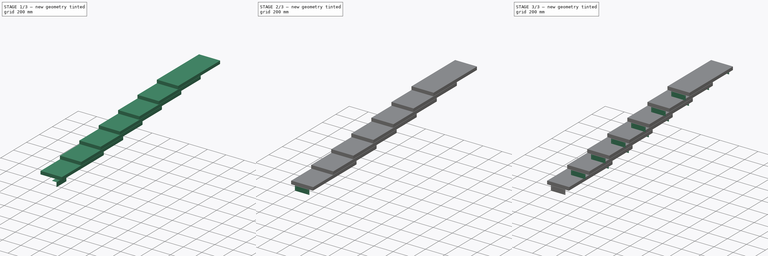
[diagram: build sequence overview — one tinted view per stage of 3, left to right]
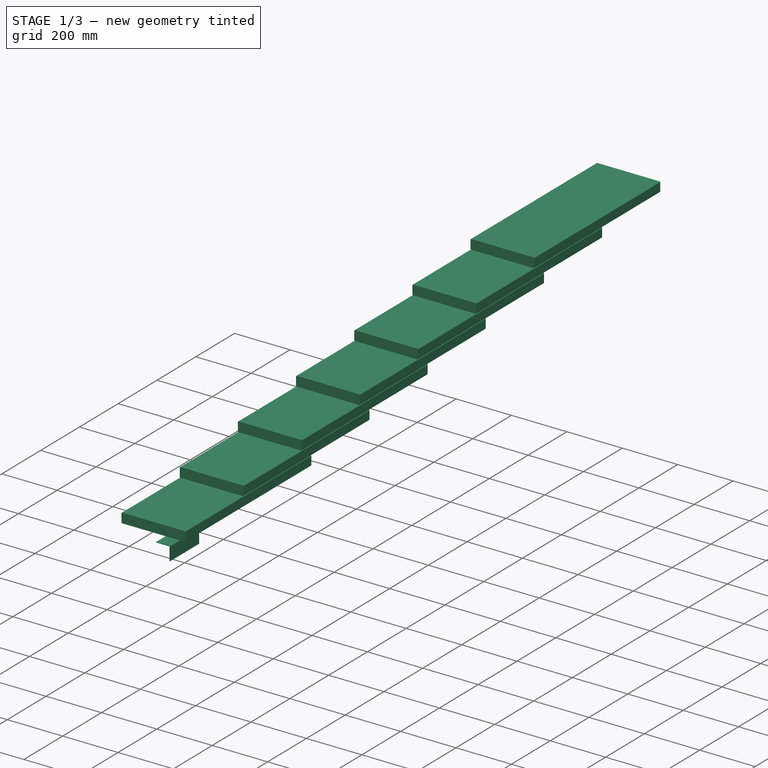
[diagram: stage 1 of 3 — iso view after this stage's code; geometry added in this stage tinted green]
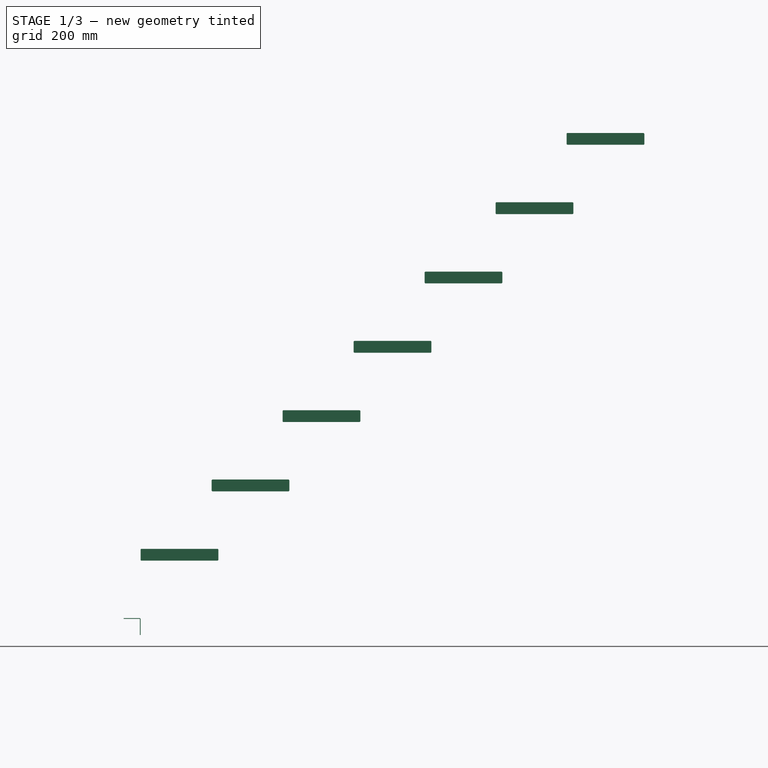
[diagram: stage 1 of 3 — front view after this stage's code; geometry added in this stage tinted green]
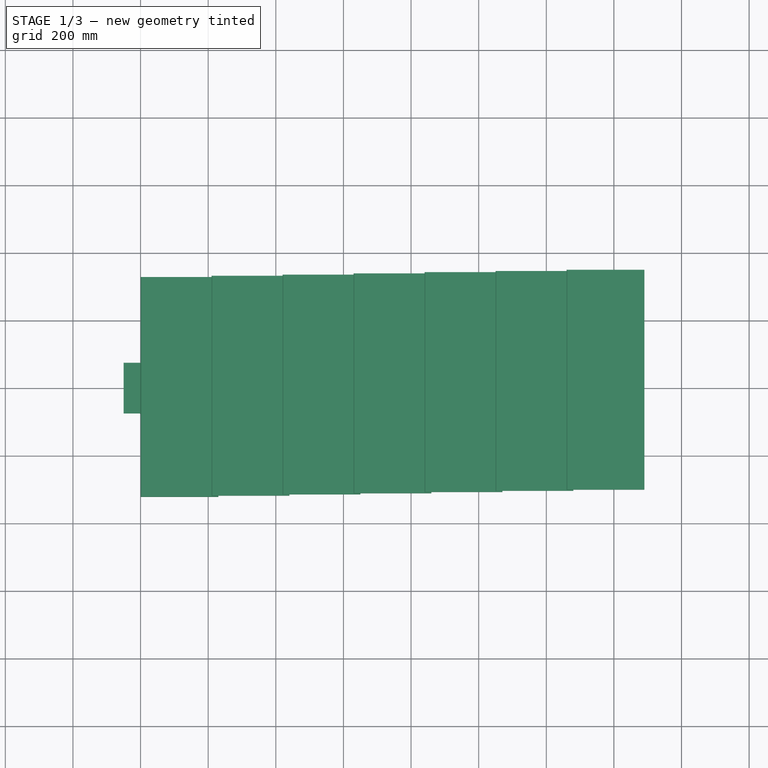
[diagram: stage 1 of 3 — top view after this stage's code; geometry added in this stage tinted green]
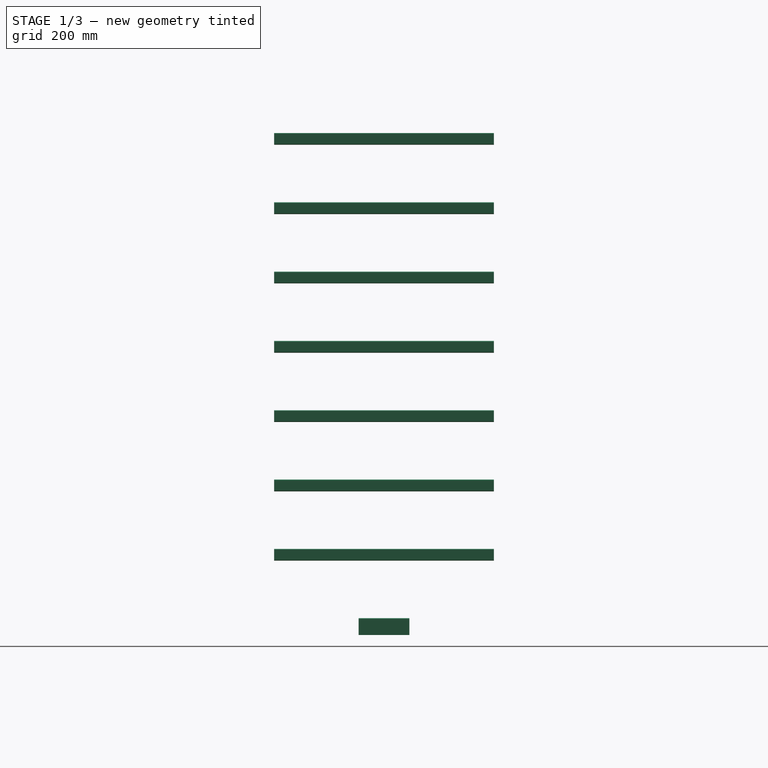
[diagram: stage 1 of 3 — right view after this stage's code; geometry added in this stage tinted green]
FCSTD DOCUMENT  (FreeCAD 0.17R10980 (Git))
Label: plate
License: All rights reserved
LicenseURL: http://en.wikipedia.org/wiki/All_rights_reserved
objects: Sketcher::SketchObject×3, Part::FeaturePython×3, PartDesign::Pocket×2, PartDesign::Pad×1, PartDesign::Body×1, Part::Compound×1
note: 14 computed .brp shape members not serialized (recipe doc carries the construction recipe); baked Part::Feature solids carry a one-line shape summary decoded from their .brp

FEATURE [Sketcher::SketchObject] Sketch  label="plate_sketch"
  MapMode = 5
  Placement = pos=(0,0,0) rot=(1,0,0;1.5708rad)
  Support = -> [XZ_Plane]
  expr: Constraints.Constraint14 = Constraints.length
  expr: Constraints.Constraint15 = Constraints.width
  sketch-geometry (8):
    g0: LineSegment StartX=-3 StartY=0 StartZ=0 EndX=-50 EndY=0 EndZ=0
    g1: LineSegment StartX=-50 StartY=0 StartZ=0 EndX=-50 EndY=-2 EndZ=0
    g2: LineSegment StartX=-50 StartY=-2 StartZ=0 EndX=-3 EndY=-2 EndZ=0
    g3: LineSegment StartX=-2 StartY=-3 StartZ=0 EndX=-2 EndY=-50 EndZ=0
    g4: LineSegment StartX=-2 StartY=-50 StartZ=0 EndX=0 EndY=-50 EndZ=0
    g5: LineSegment StartX=0 StartY=-50 StartZ=0 EndX=0 EndY=-3 EndZ=0
    g6: ArcOfCircle CenterX=-3 CenterY=-3 CenterZ=0 NormalX=0 NormalY=0 NormalZ=1 Radius=1 StartAngle=0 EndAngle=1.5708
    g7: ArcOfCircle CenterX=-3 CenterY=-3 CenterZ=0 NormalX=0 NormalY=0 NormalZ=1 Radius=3 StartAngle=1e-12 EndAngle=1.5708
  constraints (22):
    c: Horizontal(g0)
    c: Coincident(g0,g1)
    c: Vertical(g1)
    c: Coincident(g1,g2)
    c: Horizontal(g2)
    c: Vertical(g3)
    c: Coincident(g3,g4)
    c: Horizontal(g4)
    c: Coincident(g4,g5)
    c: Vertical(g5)
    c: DistanceX(g0,g-1) = 50  'length'
    c: DistanceY(g1,g1) = 2  'width'
    c: DistanceX(g4,g4) = 2  'Constraint15'
    c: DistanceY(g5,g-1) = 50  'Constraint14'
    c: Tangent(g3,g6) = 1.5708
    c: Tangent(g2,g6) = 1.5708
    c: Tangent(g5,g7) = -1.5708
    c: Tangent(g0,g7) = -1.5708
    c: Radius(g6) = 1
    c: PointOnObject(g0,g-1)
    c: PointOnObject(g4,g-2)
    c: Radius(g7) = 3
FEATURE [PartDesign::Pad] Pad  label="Plate_pad"
  Length = 150
  Length2 = 100
  Midplane = true
  Placement = pos=(0,0,0) rot=(1,0,0;1.5708rad)
  Profile = -> Sketch
  Type = 0
FEATURE [Part::FeaturePython] step_01  # a2plus imported part (geometry in sourceFile) (typed FeaturePython)
  fixedPosition = true
  sourceFile = step.fcstd
  timeLastImport = 1.4938e+09
  updateColors = true
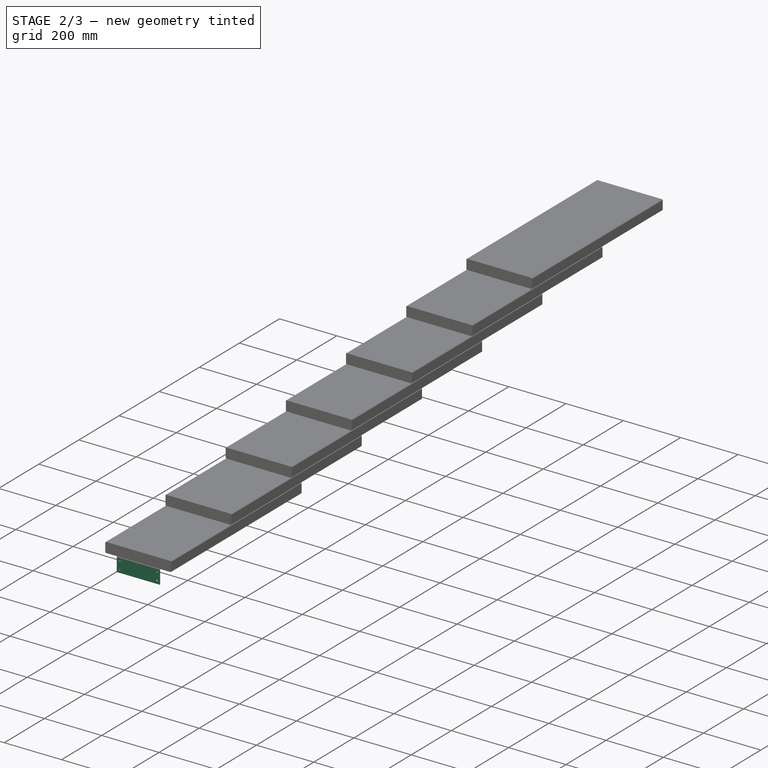
[diagram: stage 2 of 3 — iso view after this stage's code; geometry added in this stage tinted green]
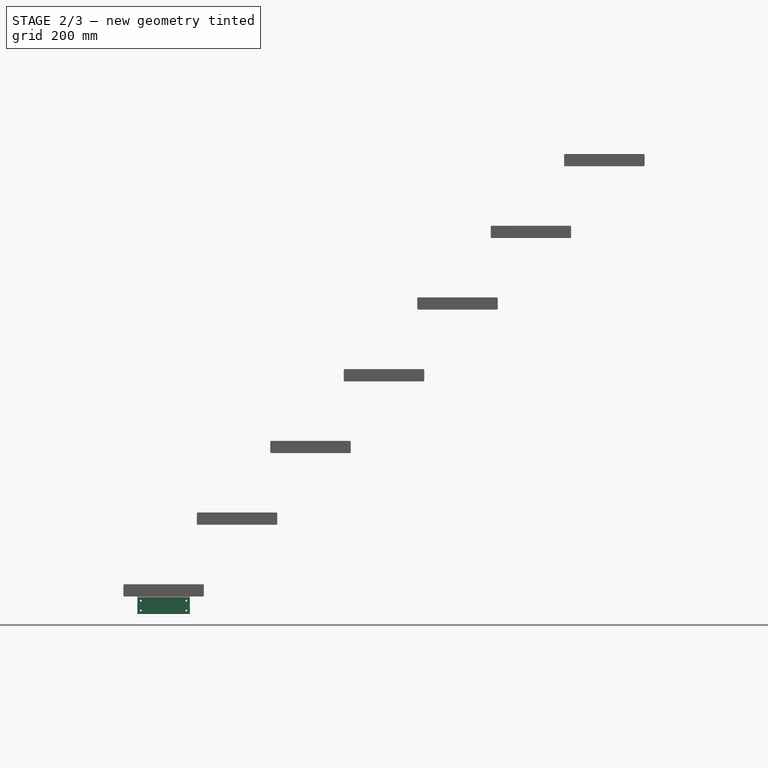
[diagram: stage 2 of 3 — front view after this stage's code; geometry added in this stage tinted green]
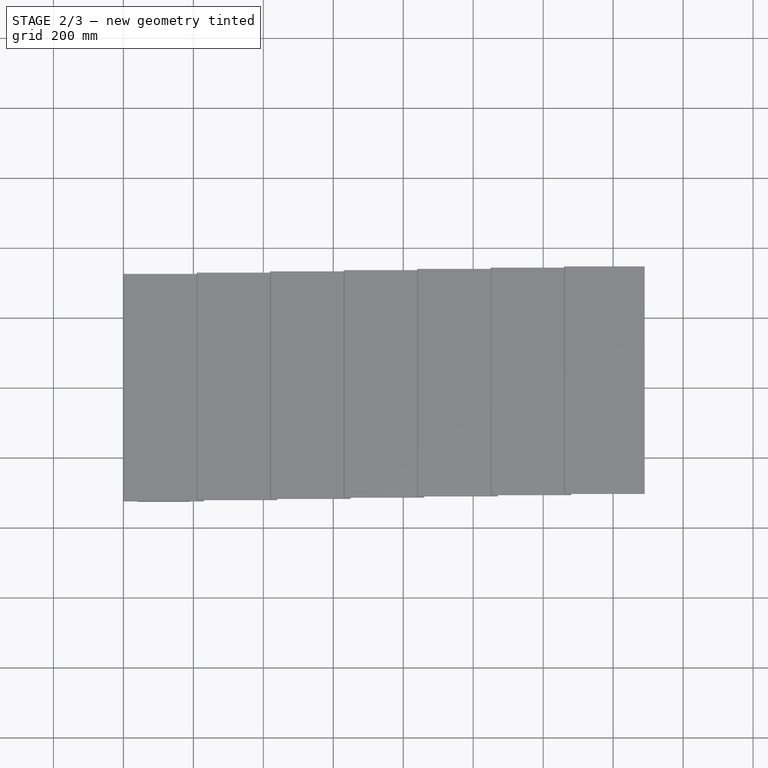
[diagram: stage 2 of 3 — top view after this stage's code; geometry added in this stage tinted green]
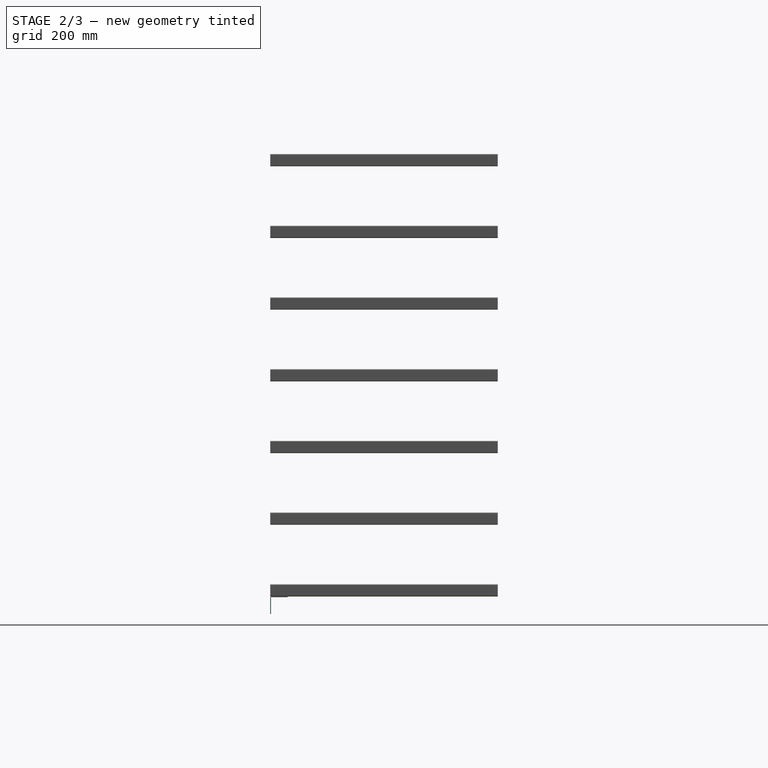
[diagram: stage 2 of 3 — right view after this stage's code; geometry added in this stage tinted green]
FEATURE [Sketcher::SketchObject] Sketch001
  ExternalGeometry = -> [Pad]
  MapMode = 5
  Placement = pos=(-2,0,0) rot=(0.707107,0,-0.707107;3.14159rad)
  Support = -> [Pad]
  sketch-geometry (10):
    g0: Circle CenterX=40 CenterY=65 CenterZ=0 NormalX=0 NormalY=0 NormalZ=1 Radius=2.5
    g1: Circle CenterX=12 CenterY=65 CenterZ=0 NormalX=0 NormalY=0 NormalZ=1 Radius=2.5
    g2: Circle CenterX=12 CenterY=-65 CenterZ=0 NormalX=0 NormalY=0 NormalZ=1 Radius=2.5
    g3: Circle CenterX=40 CenterY=-65 CenterZ=0 NormalX=0 NormalY=0 NormalZ=1 Radius=2.5
    g4: LineSegment [constr] StartX=40 StartY=65 StartZ=0 EndX=12 EndY=65 EndZ=0
    g5: LineSegment [constr] StartX=12 StartY=65 StartZ=0 EndX=12 EndY=-65 EndZ=0
    g6: LineSegment [constr] StartX=12 StartY=-65 StartZ=0 EndX=40 EndY=-65 EndZ=0
    g7: LineSegment [constr] StartX=40 StartY=-65 StartZ=0 EndX=40 EndY=65 EndZ=0
    g8: LineSegment [constr] StartX=2 StartY=0 StartZ=0 EndX=26 EndY=0 EndZ=0
    g9: LineSegment [constr] StartX=26 StartY=0 StartZ=0 EndX=50 EndY=0 EndZ=0
  constraints (26):
    c: DistanceX(g0,g-4) = 10
    c: DistanceY(g0,g-4) = 10
    c: Radius(g0) = 2.5
    c: Coincident(g4,g5)
    c: Coincident(g5,g6)
    c: Coincident(g6,g7)
    c: Coincident(g7,g4)
    c: Horizontal(g4)
    c: Horizontal(g6)
    c: Vertical(g5)
    c: Vertical(g7)
    c: Coincident(g4,g0)
    c: Coincident(g5,g2)
    c: Coincident(g4,g1)
    c: Coincident(g3,g6)
    c: Equal(g3,g2)
    c: Equal(g2,g1)
    c: Equal(g1,g0)
    c: PointOnObject(g8,g-5)
    c: PointOnObject(g8,g-1)
    c: Horizontal(g8)
    c: Coincident(g9,g8)
    c: PointOnObject(g9,g-4)
    c: Horizontal(g9)
    c: Equal(g9,g8)
    c: Symmetric(g2,g0,g8)
FEATURE [PartDesign::Pocket] Pocket
  BaseFeature = -> Pad
  Length = 5
  Placement = pos=(0,0,0) rot=(1,0,0;1.5708rad)
  Profile = -> Sketch001
  Type = 1
FEATURE [Sketcher::SketchObject] Sketch002
  ExternalGeometry = -> [Pocket]
  MapMode = 5
  Placement = pos=(0,0,-2) rot=(1,0,0;3.14159rad)
  Support = -> [Pocket]
  sketch-geometry (10):
    g0: LineSegment [constr] StartX=-40 StartY=65 StartZ=0 EndX=-12 EndY=65 EndZ=0
    g1: LineSegment [constr] StartX=-12 StartY=65 StartZ=0 EndX=-12 EndY=-65 EndZ=0
    g2: LineSegment [constr] StartX=-12 StartY=-65 StartZ=0 EndX=-40 EndY=-65 EndZ=0
    g3: LineSegment [constr] StartX=-40 StartY=-65 StartZ=0 EndX=-40 EndY=65 EndZ=0
    g4: LineSegment [constr] StartX=-50 StartY=0 StartZ=0 EndX=-26 EndY=0 EndZ=0
    g5: LineSegment [constr] StartX=-26 StartY=0 StartZ=0 EndX=-2 EndY=0 EndZ=0
    g6: Circle CenterX=-12 CenterY=65 CenterZ=0 NormalX=0 NormalY=0 NormalZ=1 Radius=2.5
    g7: Circle CenterX=-40 CenterY=65 CenterZ=0 NormalX=0 NormalY=0 NormalZ=1 Radius=2.5
    g8: Circle CenterX=-40 CenterY=-65 CenterZ=0 NormalX=0 NormalY=0 NormalZ=1 Radius=2.5
    g9: Circle CenterX=-12 CenterY=-65 CenterZ=0 NormalX=0 NormalY=0 NormalZ=1 Radius=2.5
  constraints (26):
    c: Coincident(g0,g1)
    c: Coincident(g1,g2)
    c: Coincident(g2,g3)
    c: Coincident(g3,g0)
    c: Horizontal(g0)
    c: Horizontal(g2)
    c: Vertical(g1)
    c: Vertical(g3)
    c: DistanceX(g0,g-4) = -10
    c: DistanceY(g0,g-4) = 10
    c: PointOnObject(g4,g-3)
    c: PointOnObject(g4,g-1)
    c: Horizontal(g4)
    c: Coincident(g5,g4)
    c: PointOnObject(g5,g-5)
    c: Horizontal(g5)
    c: Equal(g5,g4)
    c: Symmetric(g0,g1,g4)
    c: Coincident(g6,g0)
    c: Coincident(g7,g0)
    c: Coincident(g9,g1)
    c: Coincident(g2,g8)
    c: Radius(g8) = 2.5
    c: Equal(g8,g9)
    c: Equal(g9,g6)
    c: Equal(g6,g7)
FEATURE [PartDesign::Pocket] Pocket001
  BaseFeature = -> Pocket
  Length = 5
  Placement = pos=(0,0,0) rot=(1,0,0;1.5708rad)
  Profile = -> Sketch002
  Type = 1
FEATURE [PartDesign::Body] Body  label="Plate"
  Group = -> [Sketch,Pad,Sketch001,Pocket,Sketch002,Pocket001]
  Origin = -> BodyOrigin
  Placement = pos=(115,325,170) rot=(0,0,1;1.5708rad)
  Tip = -> Pocket001
FEATURE [Part::FeaturePython] Component  label="Compound001"  # WARN: FeaturePython — macro-defined, semantics opaque (R4)
  CloneOf = -> Body
  HorizontalArea = 0
  MoveWithHost = false
  PerimeterLength = 0
  Placement = pos=(115,-325,170) rot=(0,0,-1;1.5708rad)
  Role = 0
  VerticalArea = 0
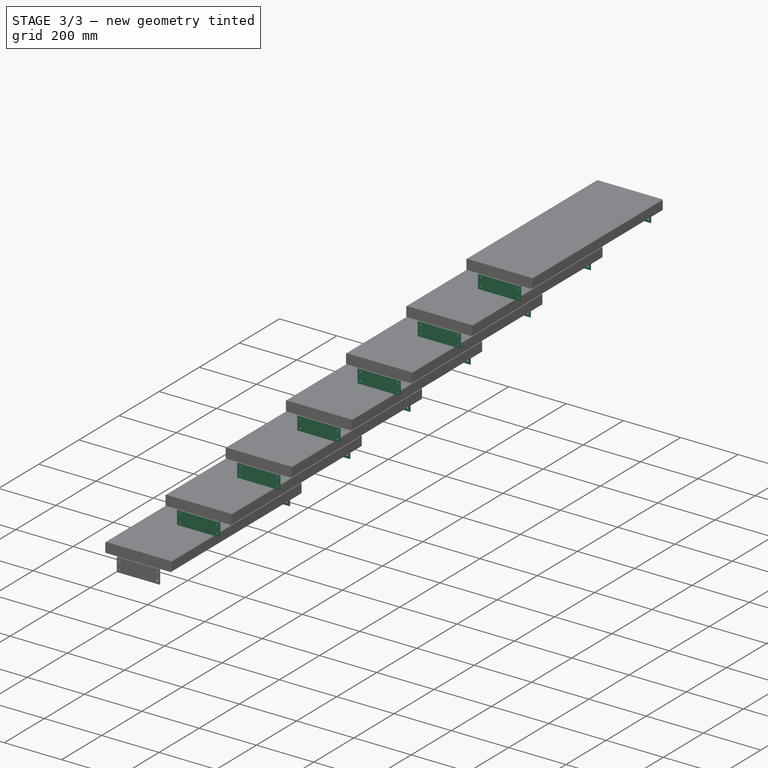
[diagram: stage 3 of 3 — iso view after this stage's code; geometry added in this stage tinted green]
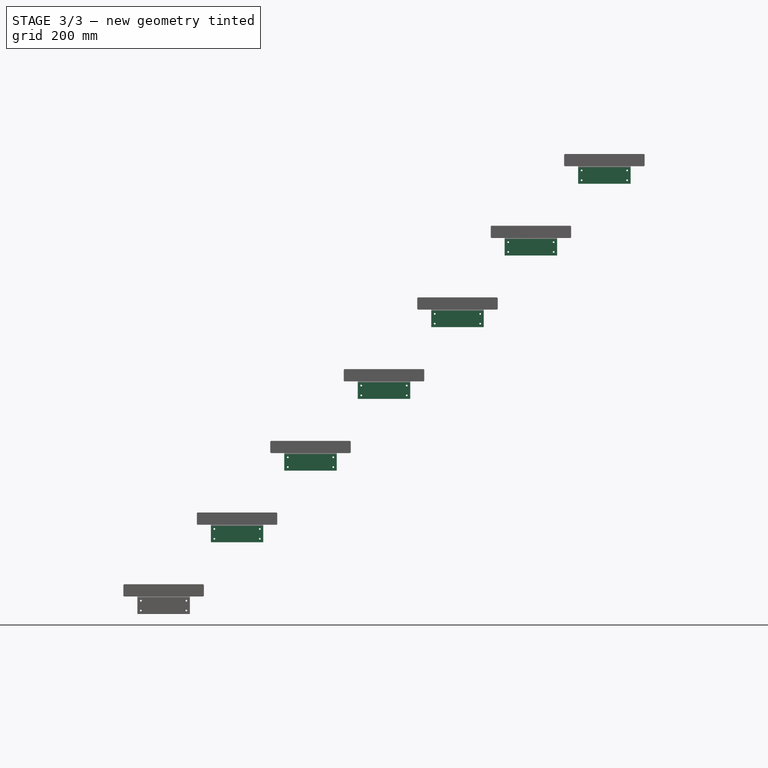
[diagram: stage 3 of 3 — front view after this stage's code; geometry added in this stage tinted green]
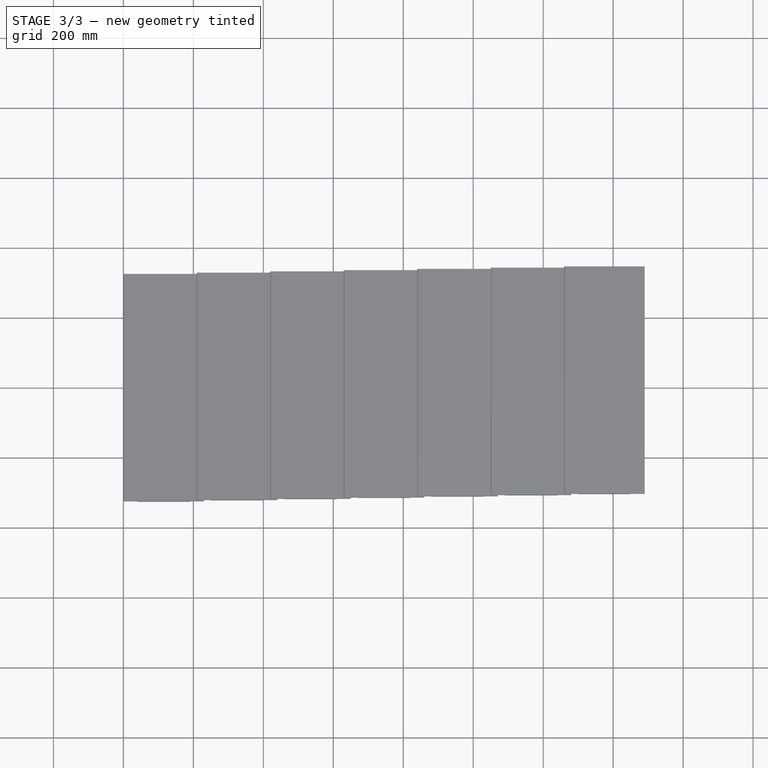
[diagram: stage 3 of 3 — top view after this stage's code; geometry added in this stage tinted green]
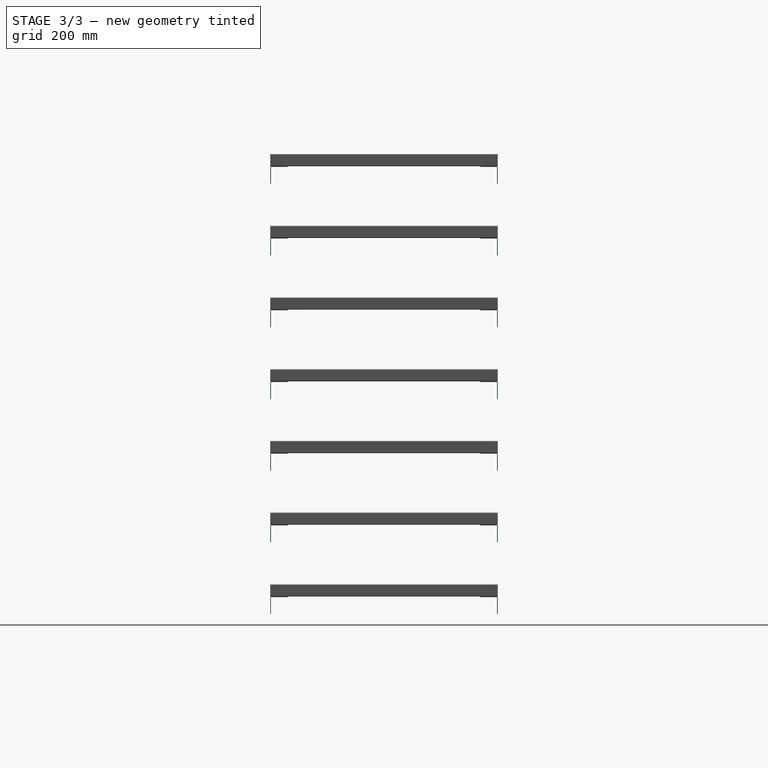
[diagram: stage 3 of 3 — right view after this stage's code; geometry added in this stage tinted green]
FEATURE [Part::Compound] Compound
  Links = -> [Component,Body]
FEATURE [Part::FeaturePython] Array  # Draft array (typed FeaturePython)
  Angle = 360
  ArrayType = 0
  Axis = (0,0,1)
  Base = -> Compound
  Center = (0,0,0)
  Fuse = false
  IntervalAxis = (0,0,0)
  IntervalX = (210,0,205)
  IntervalY = (0,1,0)
  IntervalZ = (0,0,0)
  NumberPolar = 1
  NumberX = 7
  NumberY = 1
  NumberZ = 1
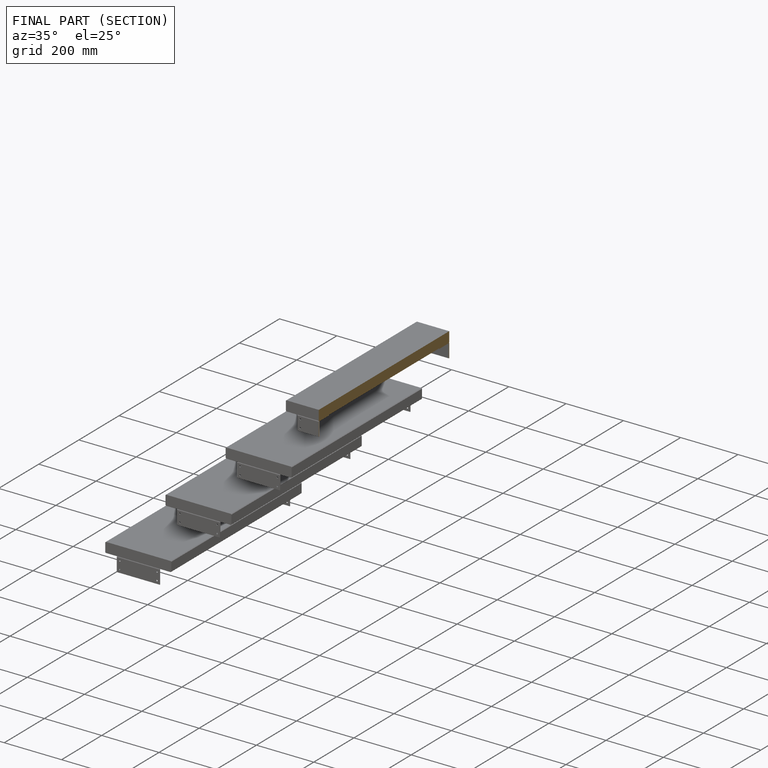
[diagram: finished part — half-section view (interior)]
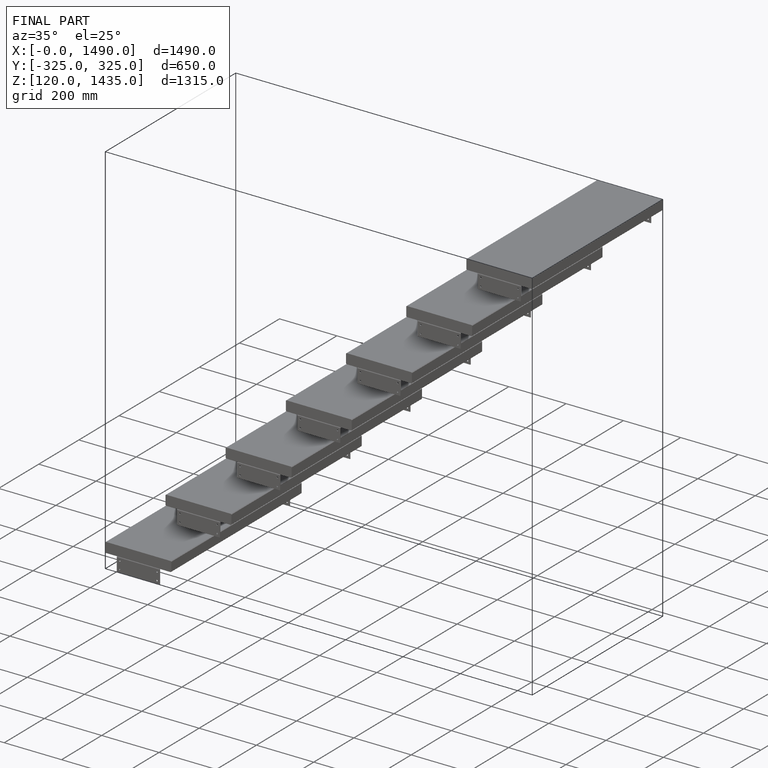
[diagram: finished part — iso view with bounding-box wireframe]
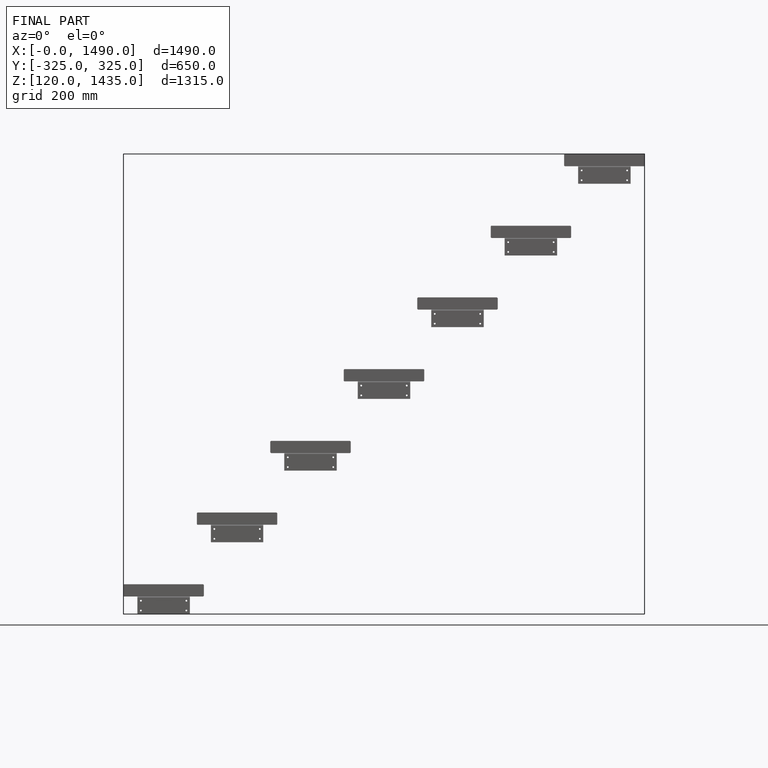
[diagram: finished part — front view with bounding-box wireframe]
